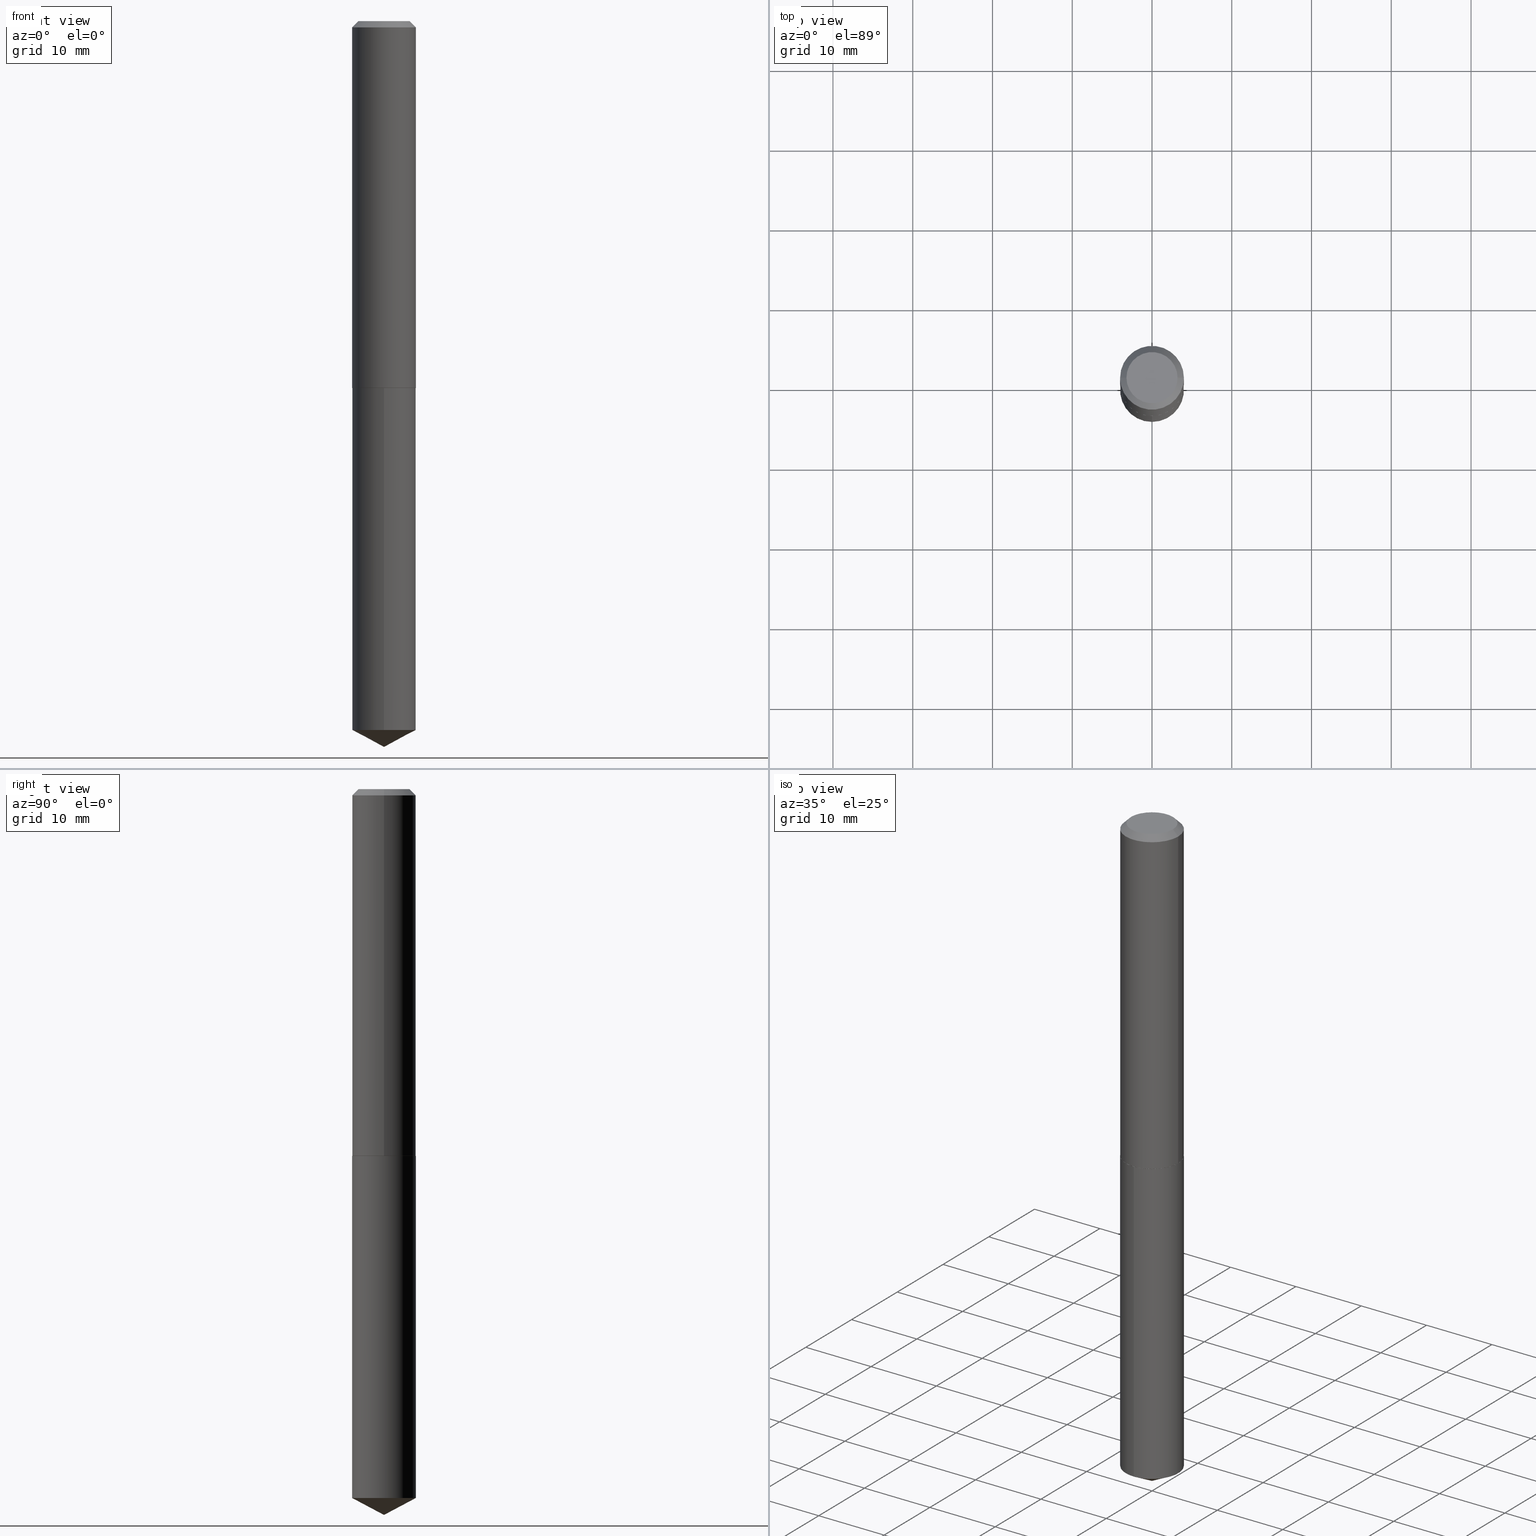
[diagram: canonical four-view strip — front | top / right | iso, engineering-drawing reading convention]
A machine part, canonical four-view strip (front | top / right | iso — engineering-drawing reading convention). The complete STEP part file that produces these views, byte-faithful:
ISO-10303-21;
HEADER;
FILE_DESCRIPTION (( 'STEP AP203' ),
    '1' );
FILE_NAME ('65210.STEP',
    '2024-04-23T11:19:13',
    ( '' ),
    ( '' ),
    'SwSTEP 2.0',
    'SolidWorks 2023',
    '' );
FILE_SCHEMA (( 'CONFIG_CONTROL_DESIGN' ));
ENDSEC;

DATA;
#1 = DIRECTION ( 'NONE',  ( 2.446502348111578865E-29, -3.490001247978926610E-15, -1.000000000000000000 ) ) ;
#2 = CC_DESIGN_DATE_AND_TIME_ASSIGNMENT ( #271, #303, ( #220 ) ) ;
#3 = DIRECTION ( 'NONE',  ( -2.446502348111579145E-29, 3.490001247978926610E-15, 1.000000000000000000 ) ) ;
#4 = AXIS2_PLACEMENT_3D ( 'NONE', #90, #171, #297 ) ;
#5 = AXIS2_PLACEMENT_3D ( 'NONE', #166, #88, #289 ) ;
#6 = PERSON_AND_ORGANIZATION_ROLE ( 'design_owner' ) ;
#7 = FACE_OUTER_BOUND ( 'NONE', #131, .T. ) ;
#8 = EDGE_CURVE ( 'NONE', #63, #55, #154, .T. ) ;
#9 = CARTESIAN_POINT ( 'NONE',  ( -0.1575000000000000011, -2.096287643151965949E-15, -0.03125000000000020123 ) ) ;
#10 = DIRECTION ( 'NONE',  ( 1.000000000000000000, -6.982962677686267499E-15, 4.876009584780190244E-29 ) ) ;
#11 = LINE ( 'NONE', #349, #48 ) ;
#12 = DIRECTION ( 'NONE',  ( -6.165590087286839185E-15, -0.8829475928589269884, 0.4694715627858908058 ) ) ;
#13 = AXIS2_PLACEMENT_3D ( 'NONE', #167, #174, #20 ) ;
#14 = AXIS2_PLACEMENT_3D ( 'NONE', #132, #243, #357 ) ;
#15 = COORDINATED_UNIVERSAL_TIME_OFFSET ( 5, 0, .BEHIND. ) ;
#16 = CARTESIAN_POINT ( 'NONE',  ( 8.558331646037396296E-29, -1.221404057733872475E-14, -3.498955764513318023 ) ) ;
#17 = CC_DESIGN_PERSON_AND_ORGANIZATION_ASSIGNMENT ( #296, #21, ( #203 ) ) ;
#18 = PERSON_AND_ORGANIZATION ( #117, #363 ) ;
#19 = ORIENTED_EDGE ( 'NONE', *, *, #347, .T. ) ;
#20 = DIRECTION ( 'NONE',  ( 1.000000000000000000, -6.982962677686264344E-15, 0.000000000000000000 ) ) ;
#21 = PERSON_AND_ORGANIZATION_ROLE ( 'design_supplier' ) ;
#22 = ORIENTED_EDGE ( 'NONE', *, *, #125, .F. ) ;
#23 = LINE ( 'NONE', #26, #24 ) ;
#24 = VECTOR ( 'NONE', #12, 39.37007874015748854 ) ;
#25 = LOCAL_TIME ( 7, 19, 13.00000000000000000, #141 ) ;
#26 = CARTESIAN_POINT ( 'NONE',  ( 8.761340267013393823E-29, -1.250898865626247406E-14, -3.582699999999999996 ) ) ;
#27 = VERTEX_POINT ( 'NONE', #315 ) ;
#28 = DIRECTION ( 'NONE',  ( -2.446502348111579145E-29, 3.490001247978926610E-15, 1.000000000000000000 ) ) ;
#29 = EDGE_LOOP ( 'NONE', ( #206, #269 ) ) ;
#30 = ORIENTED_EDGE ( 'NONE', *, *, #293, .T. ) ;
#31 = VECTOR ( 'NONE', #159, 39.37007874015748143 ) ;
#32 = CARTESIAN_POINT ( 'NONE',  ( 0.000000000000000000, 0.000000000000000000, 0.000000000000000000 ) ) ;
#33 = PERSON_AND_ORGANIZATION ( #117, #363 ) ;
#34 = VERTEX_POINT ( 'NONE', #366 ) ;
#35 = DIRECTION ( 'NONE',  ( 1.000000000000000000, -6.982962677686267499E-15, 4.876176775795936353E-29 ) ) ;
#36 = ORIENTED_EDGE ( 'NONE', *, *, #333, .T. ) ;
#37 = CARTESIAN_POINT ( 'NONE',  ( -1.179965205088274384E-46, 1.684677589683407292E-32, 4.825108388640570813E-18 ) ) ;
#38 = CIRCLE ( 'NONE', #256, 0.1262499999999999734 ) ;
#39 = SHAPE_DEFINITION_REPRESENTATION ( #382, #202 ) ;
#40 = DIRECTION ( 'NONE',  ( -0.7071067811865452413, 2.468850131082233000E-15, -0.7071067811865497932 ) ) ;
#41 = CC_DESIGN_DATE_AND_TIME_ASSIGNMENT ( #291, #201, ( #378 ) ) ;
#42 = DESIGN_CONTEXT ( 'detailed design', #181, 'design' ) ;
#43 = ADVANCED_FACE ( 'NONE', ( #217 ), #283, .F. ) ;
#44 = CARTESIAN_POINT ( 'NONE',  ( -0.1575000000000000844, 1.119104808822158392E-15, -7.747322767151481189E-30 ) ) ;
#45 = FACE_OUTER_BOUND ( 'NONE', #204, .T. ) ;
#46 = CARTESIAN_POINT ( 'NONE',  ( 1.119104808822201977E-15, 0.1574999999999936728, -1.811100000000000820 ) ) ;
#47 = ADVANCED_FACE ( 'NONE', ( #364 ), #338, .T. ) ;
#48 = VECTOR ( 'NONE', #52, 39.37007874015748143 ) ;
#49 = CARTESIAN_POINT ( 'NONE',  ( 8.765116790370389048E-29, -1.250362747113410161E-14, -3.582699999999999996 ) ) ;
#50 = APPROVAL_ROLE ( '' ) ;
#51 = EDGE_CURVE ( 'NONE', #92, #65, #82, .T. ) ;
#52 = DIRECTION ( 'NONE',  ( -2.445468806185136877E-29, 3.491481338843145188E-15, 1.000000000000000000 ) ) ;
#53 = ORIENTED_EDGE ( 'NONE', *, *, #59, .F. ) ;
#54 = AXIS2_PLACEMENT_3D ( 'NONE', #194, #337, #10 ) ;
#55 = VERTEX_POINT ( 'NONE', #111 ) ;
#56 = MANIFOLD_SOLID_BREP ( 'Body-Move/Copy2[2]', #67 ) ;
#57 = PERSON_AND_ORGANIZATION ( #117, #363 ) ;
#58 = PLANE ( 'NONE',  #69 ) ;
#59 = EDGE_CURVE ( 'NONE', #260, #65, #266, .T. ) ;
#60 = CONICAL_SURFACE ( 'NONE', #275, 0.1575000000000000011, 0.7853981633974450594 ) ;
#61 = CIRCLE ( 'NONE', #292, 0.1575000000000000011 ) ;
#62 = EDGE_LOOP ( 'NONE', ( #173, #98, #359 ) ) ;
#63 = VERTEX_POINT ( 'NONE', #85 ) ;
#64 = LINE ( 'NONE', #96, #237 ) ;
#65 = VERTEX_POINT ( 'NONE', #9 ) ;
#66 = EDGE_CURVE ( 'NONE', #321, #133, #153, .T. ) ;
#67 = CLOSED_SHELL ( 'NONE', ( #178, #114, #94, #190, #264, #164, #158, #267 ) ) ;
#68 = ORIENTED_EDGE ( 'NONE', *, *, #59, .T. ) ;
#69 = AXIS2_PLACEMENT_3D ( 'NONE', #140, #200, #345 ) ;
#70 = CARTESIAN_POINT ( 'NONE',  ( -1.099816621735542318E-15, -0.1575000000000063016, -1.811099999999999710 ) ) ;
#71 = DIRECTION ( 'NONE',  ( 0.7071067811865452413, -7.319954787623248157E-15, -0.7071067811865497932 ) ) ;
#72 = FACE_OUTER_BOUND ( 'NONE', #241, .T. ) ;
#73 = CARTESIAN_POINT ( 'NONE',  ( 4.427765820478809342E-29, -6.321676112109400370E-15, -1.810600000000000431 ) ) ;
#74 = DIRECTION ( 'NONE',  ( -2.445468806185136597E-29, 3.491481338843145583E-15, 1.000000000000000000 ) ) ;
#75 = APPROVAL_STATUS ( 'not_yet_approved' ) ;
#76 = CARTESIAN_POINT ( 'NONE',  ( 4.428988554881901583E-29, -6.323421852778821873E-15, -1.811100000000000154 ) ) ;
#77 = CARTESIAN_POINT ( 'NONE',  ( 0.1575000000000000011, -1.208925413574435989E-15, -0.03125000000000020123 ) ) ;
#78 = AXIS2_PLACEMENT_3D ( 'NONE', #80, #310, #156 ) ;
#79 = DIRECTION ( 'NONE',  ( 1.000000000000000000, -6.982962677686265922E-15, 0.000000000000000000 ) ) ;
#80 = CARTESIAN_POINT ( 'NONE',  ( 4.427765820478809342E-29, -6.321676112109400370E-15, -1.810600000000000431 ) ) ;
#81 =( CONVERSION_BASED_UNIT ( 'INCH', #216 ) LENGTH_UNIT ( ) NAMED_UNIT ( #257 ) );
#82 = LINE ( 'NONE', #44, #285 ) ;
#83 = DIRECTION ( 'NONE',  ( -2.446502348111579145E-29, 3.490001247978926610E-15, 1.000000000000000000 ) ) ;
#84 = DIRECTION ( 'NONE',  ( 1.000000000000000000, 0.000000000000000000, 0.000000000000000000 ) ) ;
#85 = CARTESIAN_POINT ( 'NONE',  ( 0.1570000000000001394, -7.419746993175565558E-15, -1.811100000000000154 ) ) ;
#86 = DIRECTION ( 'NONE',  ( -6.982962677686264344E-15, -1.000000000000000000, 3.469013325287953293E-15 ) ) ;
#87 = COORDINATED_UNIVERSAL_TIME_OFFSET ( 5, 0, .BEHIND. ) ;
#88 = DIRECTION ( 'NONE',  ( -2.446502348111579145E-29, 3.490001247978926610E-15, 1.000000000000000000 ) ) ;
#89 = ORIENTED_EDGE ( 'NONE', *, *, #347, .F. ) ;
#90 = CARTESIAN_POINT ( 'NONE',  ( 4.427765820478809342E-29, -6.321676112109400370E-15, -1.810600000000000431 ) ) ;
#91 = DATE_AND_TIME ( #259, #245 ) ;
#92 = VERTEX_POINT ( 'NONE', #343 ) ;
#93 = COORDINATED_UNIVERSAL_TIME_OFFSET ( 5, 0, .BEHIND. ) ;
#94 = ADVANCED_FACE ( 'NONE', ( #45 ), #162, .T. ) ;
#95 = VERTEX_POINT ( 'NONE', #235 ) ;
#96 = CARTESIAN_POINT ( 'NONE',  ( -0.1575000000000001954, -5.202571303287241189E-15, -1.810600000000000431 ) ) ;
#97 = CC_DESIGN_PERSON_AND_ORGANIZATION_ASSIGNMENT ( #57, #172, ( #203 ) ) ;
#98 = ORIENTED_EDGE ( 'NONE', *, *, #232, .T. ) ;
#99 = CARTESIAN_POINT ( 'NONE',  ( 7.642090019328601786E-31, -1.091087918388490144E-16, -0.03125000000000020123 ) ) ;
#100 = EDGE_LOOP ( 'NONE', ( #236, #304, #19, #325 ) ) ;
#101 = APPROVAL_ROLE ( '' ) ;
#102 = DIRECTION ( 'NONE',  ( -6.982962677686264344E-15, -1.000000000000000000, 3.469013325287953293E-15 ) ) ;
#103 = ORIENTED_EDGE ( 'NONE', *, *, #293, .F. ) ;
#104 = DIRECTION ( 'NONE',  ( -2.445468806185136597E-29, 3.491481338843145583E-15, 1.000000000000000000 ) ) ;
#105 = DIRECTION ( 'NONE',  ( 1.000000000000000000, -6.982962677686264344E-15, 0.000000000000000000 ) ) ;
#106 = DIRECTION ( 'NONE',  ( 0.7071067811866682540, -2.468850131083521605E-15, 0.7071067811864267805 ) ) ;
#107 = EDGE_CURVE ( 'NONE', #55, #63, #233, .T. ) ;
#108 = CIRCLE ( 'NONE', #14, 0.1575000000000001954 ) ;
#109 = LOCAL_TIME ( 7, 19, 13.00000000000000000, #135 ) ;
#110 = LINE ( 'NONE', #223, #31 ) ;
#111 = CARTESIAN_POINT ( 'NONE',  ( -0.1570000000000001394, -5.205220530461352390E-15, -1.811100000000000154 ) ) ;
#112 = CC_DESIGN_APPROVAL ( #376, ( #220 ) ) ;
#113 = CARTESIAN_POINT ( 'NONE',  ( 4.428988554881901583E-29, -6.323421852778821873E-15, -1.811100000000000154 ) ) ;
#114 = ADVANCED_FACE ( 'NONE', ( #290 ), #123, .T. ) ;
#115 = CARTESIAN_POINT ( 'NONE',  ( 4.428988554881901583E-29, -6.323421852778821873E-15, -1.811100000000000154 ) ) ;
#116 = FACE_OUTER_BOUND ( 'NONE', #354, .T. ) ;
#117 = PERSON ( 'UNSPECIFIED', 'UNSPECIFIED', 'UNSPECIFIED', ('UNSPECIFIED'), ('UNSPECIFIED'), ('UNSPECIFIED') ) ;
#118 = PERSON_AND_ORGANIZATION ( #117, #363 ) ;
#119 = EDGE_CURVE ( 'NONE', #95, #27, #23, .T. ) ;
#120 = ORIENTED_EDGE ( 'NONE', *, *, #333, .F. ) ;
#121 = APPROVAL_DATE_TIME ( #311, #376 ) ;
#122 = PRODUCT ( '65210', '65210', '', ( #246 ) ) ;
#123 = CYLINDRICAL_SURFACE ( 'NONE', #211, 0.1575000000000000844 ) ;
#124 = ORIENTED_EDGE ( 'NONE', *, *, #360, .F. ) ;
#125 = EDGE_CURVE ( 'NONE', #55, #92, #64, .T. ) ;
#126 = CIRCLE ( 'NONE', #342, 0.1575000000000000011 ) ;
#127 = ORIENTED_EDGE ( 'NONE', *, *, #232, .F. ) ;
#128 = DIRECTION ( 'NONE',  ( 2.445468806185136597E-29, -3.491481338843145583E-15, -1.000000000000000000 ) ) ;
#129 = VERTEX_POINT ( 'NONE', #300 ) ;
#130 = CARTESIAN_POINT ( 'NONE',  ( 7.642090019328601786E-31, -1.091087918388490144E-16, -0.03125000000000020123 ) ) ;
#131 = EDGE_LOOP ( 'NONE', ( #182, #207 ) ) ;
#132 = CARTESIAN_POINT ( 'NONE',  ( 4.427765820478809342E-29, -6.321676112109400370E-15, -1.810600000000000431 ) ) ;
#133 = VERTEX_POINT ( 'NONE', #70 ) ;
#134 = CARTESIAN_POINT ( 'NONE',  ( 8.558331646037396296E-29, -1.221404057733872475E-14, -3.498955764513318023 ) ) ;
#135 = COORDINATED_UNIVERSAL_TIME_OFFSET ( 5, 0, .BEHIND. ) ;
#136 = PERSON_AND_ORGANIZATION ( #117, #363 ) ;
#137 = LINE ( 'NONE', #198, #323 ) ;
#138 = CC_DESIGN_PERSON_AND_ORGANIZATION_ASSIGNMENT ( #294, #373, ( #378 ) ) ;
#139 = CIRCLE ( 'NONE', #155, 0.1575000000000000011 ) ;
#140 = CARTESIAN_POINT ( 'NONE',  ( -5.899826025441371921E-47, 8.423387948417036461E-33, 2.412554194320285406E-18 ) ) ;
#141 = COORDINATED_UNIVERSAL_TIME_OFFSET ( 5, 0, .BEHIND. ) ;
#142 = CONICAL_SURFACE ( 'NONE', #175, 74.04434902938376695, 1.082104136236487824 ) ;
#143 = DIRECTION ( 'NONE',  ( -2.445468806185136597E-29, 3.491481338843145583E-15, 1.000000000000000000 ) ) ;
#144 = AXIS2_PLACEMENT_3D ( 'NONE', #16, #28, #102 ) ;
#145 = ORIENTED_EDGE ( 'NONE', *, *, #51, .T. ) ;
#146 = CONICAL_SURFACE ( 'NONE', #244, 0.1575000000000000011, 0.7853981633974450594 ) ;
#147 = CONICAL_SURFACE ( 'NONE', #369, 74.04434902938376695, 1.082104136236487824 ) ;
#148 = ORIENTED_EDGE ( 'NONE', *, *, #125, .T. ) ;
#149 = DIRECTION ( 'NONE',  ( -2.445468806185136597E-29, 3.491481338843145583E-15, 1.000000000000000000 ) ) ;
#150 = EDGE_LOOP ( 'NONE', ( #209, #145, #53, #103 ) ) ;
#151 = CARTESIAN_POINT ( 'NONE',  ( 7.642090019328601786E-31, -1.091087918388490144E-16, -0.03125000000000020123 ) ) ;
#152 = ORIENTED_EDGE ( 'NONE', *, *, #163, .F. ) ;
#153 = CIRCLE ( 'NONE', #329, 0.1575000000000000011 ) ;
#154 = CIRCLE ( 'NONE', #302, 0.1570000000000001394 ) ;
#155 = AXIS2_PLACEMENT_3D ( 'NONE', #134, #83, #196 ) ;
#156 = DIRECTION ( 'NONE',  ( 1.000000000000000000, -6.982962677686265922E-15, 0.000000000000000000 ) ) ;
#157 = FACE_OUTER_BOUND ( 'NONE', #298, .T. ) ;
#158 = ADVANCED_FACE ( 'NONE', ( #332 ), #146, .T. ) ;
#159 = DIRECTION ( 'NONE',  ( -2.446502348111579425E-29, 3.490001247978926610E-15, 1.000000000000000000 ) ) ;
#160 = UNCERTAINTY_MEASURE_WITH_UNIT (LENGTH_MEASURE( 1.000000000000000082E-05 ), #81, 'distance_accuracy_value', 'NONE');
#161 = DIRECTION ( 'NONE',  ( -2.445468806185136597E-29, 3.491481338843145583E-15, 1.000000000000000000 ) ) ;
#162 = CONICAL_SURFACE ( 'NONE', #4, 0.1575000000000001954, 0.7853981633976190313 ) ;
#163 = EDGE_CURVE ( 'NONE', #65, #260, #126, .T. ) ;
#164 = ADVANCED_FACE ( 'NONE', ( #72 ), #326, .T. ) ;
#165 = DATE_AND_TIME ( #230, #169 ) ;
#166 = CARTESIAN_POINT ( 'NONE',  ( 4.428988554881901583E-29, -6.323421852778821873E-15, -1.811100000000000154 ) ) ;
#167 = CARTESIAN_POINT ( 'NONE',  ( 4.428988554881901583E-29, -6.323421852778821873E-15, -1.811100000000000154 ) ) ;
#168 = DIRECTION ( 'NONE',  ( -6.982962677686264344E-15, -1.000000000000000000, 3.469013325287953293E-15 ) ) ;
#169 = LOCAL_TIME ( 7, 19, 13.00000000000000000, #87 ) ;
#170 = APPROVAL_DATE_TIME ( #165, #316 ) ;
#171 = DIRECTION ( 'NONE',  ( -2.445468806185136597E-29, 3.491481338843145583E-15, 1.000000000000000000 ) ) ;
#172 = PERSON_AND_ORGANIZATION_ROLE ( 'creator' ) ;
#173 = ORIENTED_EDGE ( 'NONE', *, *, #119, .F. ) ;
#174 = DIRECTION ( 'NONE',  ( -2.445468806185136597E-29, 3.491481338843145583E-15, 1.000000000000000000 ) ) ;
#175 = AXIS2_PLACEMENT_3D ( 'NONE', #388, #3, #214 ) ;
#176 = ORIENTED_EDGE ( 'NONE', *, *, #240, .T. ) ;
#177 = ORIENTED_EDGE ( 'NONE', *, *, #227, .F. ) ;
#178 = ADVANCED_FACE ( 'NONE', ( #270 ), #60, .T. ) ;
#179 = ORIENTED_EDGE ( 'NONE', *, *, #320, .F. ) ;
#180 = MANIFOLD_SOLID_BREP ( 'Body-Move/Copy2[1]', #189 ) ;
#181 = APPLICATION_CONTEXT ( 'configuration controlled 3d designs of mechanical parts and assemblies' ) ;
#182 = ORIENTED_EDGE ( 'NONE', *, *, #8, .F. ) ;
#183 = EDGE_CURVE ( 'NONE', #92, #272, #108, .T. ) ;
#184 = CARTESIAN_POINT ( 'NONE',  ( 1.119104808822243392E-15, 0.1574999999999936728, -1.811100000000000820 ) ) ;
#185 = ORIENTED_EDGE ( 'NONE', *, *, #360, .T. ) ;
#186 = CARTESIAN_POINT ( 'NONE',  ( -0.1262499999999999734, 9.361534339773144209E-16, 4.825108388634215244E-18 ) ) ;
#187 = DIRECTION ( 'NONE',  ( 6.273719981627770021E-15, 0.8829475928589302081, 0.4694715627858845886 ) ) ;
#188 = CALENDAR_DATE ( 2024, 23, 4 ) ;
#189 = CLOSED_SHELL ( 'NONE', ( #279, #199, #367, #47, #43 ) ) ;
#190 = ADVANCED_FACE ( 'NONE', ( #7 ), #390, .F. ) ;
#191 = AXIS2_PLACEMENT_3D ( 'NONE', #252, #339, #84 ) ;
#192 = APPLICATION_PROTOCOL_DEFINITION ( 'international standard', 'config_control_design', 1994, #228 ) ;
#193 = DIRECTION ( 'NONE',  ( -2.446502348111579145E-29, 3.490001247978926610E-15, 1.000000000000000000 ) ) ;
#194 = CARTESIAN_POINT ( 'NONE',  ( -1.179965205088274384E-46, 1.684677589683407292E-32, 4.825108388640570813E-18 ) ) ;
#195 = EDGE_CURVE ( 'NONE', #27, #129, #139, .T. ) ;
#196 = DIRECTION ( 'NONE',  ( -6.982962677686264344E-15, -1.000000000000000000, 3.469013325287953293E-15 ) ) ;
#197 = APPROVAL_ROLE ( '' ) ;
#198 = CARTESIAN_POINT ( 'NONE',  ( 0.1575000000000001954, -7.421492733844987850E-15, -1.810600000000000431 ) ) ;
#199 = ADVANCED_FACE ( 'NONE', ( #253 ), #147, .T. ) ;
#200 = DIRECTION ( 'NONE',  ( 2.438088387897960049E-29, -3.491481338843145188E-15, -1.000000000000000000 ) ) ;
#201 = DATE_TIME_ROLE ( 'creation_date' ) ;
#202 = ADVANCED_BREP_SHAPE_REPRESENTATION ( '65210', ( #180, #56, #191 ), #351 ) ;
#203 = PRODUCT_DEFINITION_FORMATION_WITH_SPECIFIED_SOURCE ( 'ANY', '', #122, .NOT_KNOWN. ) ;
#204 = EDGE_LOOP ( 'NONE', ( #383, #148, #327, #177 ) ) ;
#205 = CIRCLE ( 'NONE', #144, 0.1575000000000000011 ) ;
#206 = ORIENTED_EDGE ( 'NONE', *, *, #308, .T. ) ;
#207 = ORIENTED_EDGE ( 'NONE', *, *, #107, .F. ) ;
#208 = DIRECTION ( 'NONE',  ( 1.000000000000000000, -6.982962677686265922E-15, 0.000000000000000000 ) ) ;
#209 = ORIENTED_EDGE ( 'NONE', *, *, #356, .T. ) ;
#210 = CALENDAR_DATE ( 2024, 23, 4 ) ;
#211 = AXIS2_PLACEMENT_3D ( 'NONE', #375, #143, #261 ) ;
#212 = LINE ( 'NONE', #331, #250 ) ;
#213 = ORIENTED_EDGE ( 'NONE', *, *, #183, .T. ) ;
#214 = DIRECTION ( 'NONE',  ( -6.982962677686267499E-15, -1.000000000000000000, 3.541896320645549825E-15 ) ) ;
#215 = FACE_OUTER_BOUND ( 'NONE', #274, .T. ) ;
#216 = LENGTH_MEASURE_WITH_UNIT ( LENGTH_MEASURE( 0.02539999999999999897 ), #224 );
#217 = FACE_OUTER_BOUND ( 'NONE', #29, .T. ) ;
#218 = LINE ( 'NONE', #49, #374 ) ;
#219 = APPROVAL ( #317, 'UNSPECIFIED' ) ;
#220 = SECURITY_CLASSIFICATION ( '', '', #262 ) ;
#221 = DIRECTION ( 'NONE',  ( -2.445468806185136877E-29, 3.491481338843145188E-15, 1.000000000000000000 ) ) ;
#222 = DIRECTION ( 'NONE',  ( -2.446502348111579425E-29, 3.490001247978926610E-15, 1.000000000000000000 ) ) ;
#223 = CARTESIAN_POINT ( 'NONE',  ( -1.099816621735542318E-15, -0.1575000000000063016, -1.811099999999999710 ) ) ;
#224 =( LENGTH_UNIT ( ) NAMED_UNIT ( * ) SI_UNIT ( $, .METRE. ) );
#225 = CARTESIAN_POINT ( 'NONE',  ( 7.642090019328601786E-31, -1.091087918388490144E-16, -0.03125000000000020123 ) ) ;
#226 = CARTESIAN_POINT ( 'NONE',  ( -8.755577796833666500E-28, 1.248953158724799285E-13, 35.78737874015747877 ) ) ;
#227 = EDGE_CURVE ( 'NONE', #63, #272, #137, .T. ) ;
#228 = APPLICATION_CONTEXT ( 'configuration controlled 3d designs of mechanical parts and assemblies' ) ;
#229 = AXIS2_PLACEMENT_3D ( 'NONE', #281, #284, #248 ) ;
#230 = CALENDAR_DATE ( 2024, 23, 4 ) ;
#231 = DIRECTION ( 'NONE',  ( -2.446502348111579145E-29, 3.490001247978926610E-15, 1.000000000000000000 ) ) ;
#232 = EDGE_CURVE ( 'NONE', #95, #129, #218, .T. ) ;
#233 = CIRCLE ( 'NONE', #13, 0.1570000000000001394 ) ;
#234 = CIRCLE ( 'NONE', #312, 0.1575000000000001954 ) ;
#235 = CARTESIAN_POINT ( 'NONE',  ( 8.765083962579353023E-29, -1.250362747113410003E-14, -3.582699999999999996 ) ) ;
#236 = ORIENTED_EDGE ( 'NONE', *, *, #240, .F. ) ;
#237 = VECTOR ( 'NONE', #328, 39.37007874015748143 ) ;
#238 = VECTOR ( 'NONE', #222, 39.37007874015748143 ) ;
#239 = CARTESIAN_POINT ( 'NONE',  ( 4.428988554881901583E-29, -6.323421852778821873E-15, -1.811100000000000154 ) ) ;
#240 = EDGE_CURVE ( 'NONE', #129, #321, #288, .T. ) ;
#241 = EDGE_LOOP ( 'NONE', ( #301, #213, #30, #152 ) ) ;
#242 = ORIENTED_EDGE ( 'NONE', *, *, #314, .F. ) ;
#243 = DIRECTION ( 'NONE',  ( -2.445468806185136597E-29, 3.491481338843145583E-15, 1.000000000000000000 ) ) ;
#244 = AXIS2_PLACEMENT_3D ( 'NONE', #130, #128, #353 ) ;
#245 = LOCAL_TIME ( 7, 19, 13.00000000000000000, #15 ) ;
#246 = MECHANICAL_CONTEXT ( 'NONE', #228, 'mechanical' ) ;
#247 = EDGE_LOOP ( 'NONE', ( #179, #370, #185, #295 ) ) ;
#248 = DIRECTION ( 'NONE',  ( 1.000000000000000000, -6.982962677686265922E-15, 4.876176775795935793E-29 ) ) ;
#249 = PRODUCT_RELATED_PRODUCT_CATEGORY ( 'detail', '', ( #122 ) ) ;
#250 = VECTOR ( 'NONE', #71, 39.37007874015748143 ) ;
#251 = DIRECTION ( 'NONE',  ( 6.982962677686265922E-15, 1.000000000000000000, -3.490001247978926610E-15 ) ) ;
#252 = CARTESIAN_POINT ( 'NONE',  ( 0.000000000000000000, 0.000000000000000000, 0.000000000000000000 ) ) ;
#253 = FACE_OUTER_BOUND ( 'NONE', #62, .T. ) ;
#254 = CYLINDRICAL_SURFACE ( 'NONE', #5, 0.1575000000000000011 ) ;
#255 = CALENDAR_DATE ( 2024, 23, 4 ) ;
#256 = AXIS2_PLACEMENT_3D ( 'NONE', #37, #161, #334 ) ;
#257 = DIMENSIONAL_EXPONENTS ( 1.000000000000000000, 0.000000000000000000, 0.000000000000000000, 0.000000000000000000, 0.000000000000000000, 0.000000000000000000, 0.000000000000000000 ) ;
#258 = EDGE_CURVE ( 'NONE', #380, #34, #368, .T. ) ;
#259 = CALENDAR_DATE ( 2024, 23, 4 ) ;
#260 = VERTEX_POINT ( 'NONE', #77 ) ;
#261 = DIRECTION ( 'NONE',  ( 1.000000000000000000, -6.982962677686267499E-15, 4.876176775795936353E-29 ) ) ;
#262 = SECURITY_CLASSIFICATION_LEVEL ( 'unclassified' ) ;
#263 = CC_DESIGN_SECURITY_CLASSIFICATION ( #220, ( #203 ) ) ;
#264 = ADVANCED_FACE ( 'NONE', ( #215 ), #268, .T. ) ;
#265 = ORIENTED_EDGE ( 'NONE', *, *, #320, .T. ) ;
#266 = CIRCLE ( 'NONE', #379, 0.1575000000000000011 ) ;
#267 = ADVANCED_FACE ( 'NONE', ( #335 ), #58, .F. ) ;
#268 = CONICAL_SURFACE ( 'NONE', #78, 0.1575000000000001954, 0.7853981633976190313 ) ;
#269 = ORIENTED_EDGE ( 'NONE', *, *, #66, .T. ) ;
#270 = FACE_OUTER_BOUND ( 'NONE', #372, .T. ) ;
#271 = DATE_AND_TIME ( #188, #109 ) ;
#272 = VERTEX_POINT ( 'NONE', #319 ) ;
#273 = DIRECTION ( 'NONE',  ( 2.445468806185136597E-29, -3.491481338843145583E-15, -1.000000000000000000 ) ) ;
#274 = EDGE_LOOP ( 'NONE', ( #22, #355, #385, #307 ) ) ;
#275 = AXIS2_PLACEMENT_3D ( 'NONE', #151, #273, #384 ) ;
#276 = APPROVAL_PERSON_ORGANIZATION ( #18, #219, #50 ) ;
#277 =( NAMED_UNIT ( * ) PLANE_ANGLE_UNIT ( ) SI_UNIT ( $, .RADIAN. ) );
#278 = DIRECTION ( 'NONE',  ( -6.982962677686264344E-15, -1.000000000000000000, 3.469013325287953293E-15 ) ) ;
#279 = ADVANCED_FACE ( 'NONE', ( #116 ), #254, .T. ) ;
#280 = CARTESIAN_POINT ( 'NONE',  ( -0.1575000000000000011, 9.907078298967379852E-16, -0.03125000000000020123 ) ) ;
#281 = CARTESIAN_POINT ( 'NONE',  ( 4.428988554881901583E-29, -6.323421852778821873E-15, -1.811100000000000154 ) ) ;
#282 = DIRECTION ( 'NONE',  ( 1.000000000000000000, -6.982962677686265922E-15, 0.000000000000000000 ) ) ;
#283 = PLANE ( 'NONE',  #322 ) ;
#284 = DIRECTION ( 'NONE',  ( -2.438088387897960049E-29, 3.491481338843145188E-15, 1.000000000000000000 ) ) ;
#285 = VECTOR ( 'NONE', #221, 39.37007874015748143 ) ;
#286 = VECTOR ( 'NONE', #40, 39.37007874015748143 ) ;
#287 = PERSON_AND_ORGANIZATION ( #117, #363 ) ;
#288 = LINE ( 'NONE', #46, #238 ) ;
#289 = DIRECTION ( 'NONE',  ( -6.982962677686264344E-15, -1.000000000000000000, 3.469013325287953293E-15 ) ) ;
#290 = FACE_OUTER_BOUND ( 'NONE', #150, .T. ) ;
#291 = DATE_AND_TIME ( #255, #25 ) ;
#292 = AXIS2_PLACEMENT_3D ( 'NONE', #113, #231, #168 ) ;
#293 = EDGE_CURVE ( 'NONE', #272, #260, #11, .T. ) ;
#294 = PERSON_AND_ORGANIZATION ( #117, #363 ) ;
#295 = ORIENTED_EDGE ( 'NONE', *, *, #163, .T. ) ;
#296 = PERSON_AND_ORGANIZATION ( #117, #363 ) ;
#297 = DIRECTION ( 'NONE',  ( 1.000000000000000000, -6.982962677686265922E-15, 0.000000000000000000 ) ) ;
#298 = EDGE_LOOP ( 'NONE', ( #127, #377, #242 ) ) ;
#299 = ORIENTED_EDGE ( 'NONE', *, *, #308, .F. ) ;
#300 = CARTESIAN_POINT ( 'NONE',  ( 1.119104808822243392E-15, 0.1574999999999877887, -3.498955764513318467 ) ) ;
#301 = ORIENTED_EDGE ( 'NONE', *, *, #51, .F. ) ;
#302 = AXIS2_PLACEMENT_3D ( 'NONE', #239, #74, #105 ) ;
#303 = DATE_TIME_ROLE ( 'classification_date' ) ;
#304 = ORIENTED_EDGE ( 'NONE', *, *, #314, .T. ) ;
#305 = DIRECTION ( 'NONE',  ( -2.445468806185136597E-29, 3.491481338843145583E-15, 1.000000000000000000 ) ) ;
#306 = APPLICATION_PROTOCOL_DEFINITION ( 'international standard', 'config_control_design', 1994, #181 ) ;
#307 = ORIENTED_EDGE ( 'NONE', *, *, #183, .F. ) ;
#308 = EDGE_CURVE ( 'NONE', #133, #321, #61, .T. ) ;
#309 = CARTESIAN_POINT ( 'NONE',  ( 4.428988554881901583E-29, -6.323421852778821873E-15, -1.811100000000000154 ) ) ;
#310 = DIRECTION ( 'NONE',  ( -2.445468806185136597E-29, 3.491481338843145583E-15, 1.000000000000000000 ) ) ;
#311 = DATE_AND_TIME ( #210, #348 ) ;
#312 = AXIS2_PLACEMENT_3D ( 'NONE', #73, #104, #282 ) ;
#313 = LINE ( 'NONE', #280, #286 ) ;
#314 = EDGE_CURVE ( 'NONE', #129, #27, #205, .T. ) ;
#315 = CARTESIAN_POINT ( 'NONE',  ( -1.099816621735501297E-15, -0.1575000000000122413, -3.498955764513317135 ) ) ;
#316 = APPROVAL ( #346, 'UNSPECIFIED' ) ;
#317 = APPROVAL_STATUS ( 'not_yet_approved' ) ;
#318 = APPROVAL_DATE_TIME ( #91, #219 ) ;
#319 = CARTESIAN_POINT ( 'NONE',  ( 0.1575000000000001954, -7.421492733844987850E-15, -1.810600000000000431 ) ) ;
#320 = EDGE_CURVE ( 'NONE', #34, #260, #212, .T. ) ;
#321 = VERTEX_POINT ( 'NONE', #184 ) ;
#322 = AXIS2_PLACEMENT_3D ( 'NONE', #76, #1, #251 ) ;
#323 = VECTOR ( 'NONE', #106, 39.37007874015748143 ) ;
#324 = ORIENTED_EDGE ( 'NONE', *, *, #258, .T. ) ;
#325 = ORIENTED_EDGE ( 'NONE', *, *, #66, .F. ) ;
#326 = CYLINDRICAL_SURFACE ( 'NONE', #386, 0.1575000000000000844 ) ;
#327 = ORIENTED_EDGE ( 'NONE', *, *, #356, .F. ) ;
#328 = DIRECTION ( 'NONE',  ( -0.7071067811866682540, 7.493145998870789611E-15, 0.7071067811864267805 ) ) ;
#329 = AXIS2_PLACEMENT_3D ( 'NONE', #115, #341, #86 ) ;
#330 = APPROVAL_PERSON_ORGANIZATION ( #136, #316, #197 ) ;
#331 = CARTESIAN_POINT ( 'NONE',  ( 0.1575000000000000011, -1.189637226487865274E-15, -0.03125000000000020123 ) ) ;
#332 = FACE_OUTER_BOUND ( 'NONE', #247, .T. ) ;
#333 = EDGE_CURVE ( 'NONE', #34, #380, #38, .T. ) ;
#334 = DIRECTION ( 'NONE',  ( 1.000000000000000000, -6.982962677686267499E-15, 4.876009584780190244E-29 ) ) ;
#335 = FACE_OUTER_BOUND ( 'NONE', #350, .T. ) ;
#336 = PERSON_AND_ORGANIZATION_ROLE ( 'classification_officer' ) ;
#337 = DIRECTION ( 'NONE',  ( -2.445468806185136597E-29, 3.491481338843145583E-15, 1.000000000000000000 ) ) ;
#338 = CYLINDRICAL_SURFACE ( 'NONE', #362, 0.1575000000000000011 ) ;
#339 = DIRECTION ( 'NONE',  ( 0.000000000000000000, 0.000000000000000000, 1.000000000000000000 ) ) ;
#340 = DIRECTION ( 'NONE',  ( -6.982962677686267499E-15, -1.000000000000000000, 3.541896320645549825E-15 ) ) ;
#341 = DIRECTION ( 'NONE',  ( -2.446502348111579145E-29, 3.490001247978926610E-15, 1.000000000000000000 ) ) ;
#342 = AXIS2_PLACEMENT_3D ( 'NONE', #99, #305, #208 ) ;
#343 = CARTESIAN_POINT ( 'NONE',  ( -0.1575000000000001954, -5.202571303287241189E-15, -1.810600000000000431 ) ) ;
#344 = CC_DESIGN_PERSON_AND_ORGANIZATION_ASSIGNMENT ( #287, #6, ( #122 ) ) ;
#345 = DIRECTION ( 'NONE',  ( -1.000000000000000000, 6.982962677686265922E-15, -4.876176775795935793E-29 ) ) ;
#346 = APPROVAL_STATUS ( 'not_yet_approved' ) ;
#347 = EDGE_CURVE ( 'NONE', #27, #133, #110, .T. ) ;
#348 = LOCAL_TIME ( 7, 19, 13.00000000000000000, #93 ) ;
#349 = CARTESIAN_POINT ( 'NONE',  ( 0.1575000000000000844, -1.099816621735587677E-15, 7.679978421878603638E-30 ) ) ;
#350 = EDGE_LOOP ( 'NONE', ( #324, #36 ) ) ;
#351 =( GEOMETRIC_REPRESENTATION_CONTEXT ( 3 ) GLOBAL_UNCERTAINTY_ASSIGNED_CONTEXT ( ( #160 ) ) GLOBAL_UNIT_ASSIGNED_CONTEXT ( ( #81, #277, #365 ) ) REPRESENTATION_CONTEXT ( 'NONE', 'WORKASPACE' ) );
#352 = ORIENTED_EDGE ( 'NONE', *, *, #195, .T. ) ;
#353 = DIRECTION ( 'NONE',  ( -1.000000000000000000, 6.982962677686265922E-15, 0.000000000000000000 ) ) ;
#354 = EDGE_LOOP ( 'NONE', ( #352, #176, #299, #89 ) ) ;
#355 = ORIENTED_EDGE ( 'NONE', *, *, #107, .T. ) ;
#356 = EDGE_CURVE ( 'NONE', #272, #92, #234, .T. ) ;
#357 = DIRECTION ( 'NONE',  ( 1.000000000000000000, -6.982962677686265922E-15, 0.000000000000000000 ) ) ;
#358 = APPROVAL_PERSON_ORGANIZATION ( #33, #376, #101 ) ;
#359 = ORIENTED_EDGE ( 'NONE', *, *, #195, .F. ) ;
#360 = EDGE_CURVE ( 'NONE', #380, #65, #313, .T. ) ;
#361 = DIRECTION ( 'NONE',  ( -2.446502348111579145E-29, 3.490001247978926610E-15, 1.000000000000000000 ) ) ;
#362 = AXIS2_PLACEMENT_3D ( 'NONE', #309, #193, #278 ) ;
#363 = ORGANIZATION ( 'UNSPECIFIED', 'UNSPECIFIED', '' ) ;
#364 = FACE_OUTER_BOUND ( 'NONE', #100, .T. ) ;
#365 =( NAMED_UNIT ( * ) SI_UNIT ( $, .STERADIAN. ) SOLID_ANGLE_UNIT ( ) );
#366 = CARTESIAN_POINT ( 'NONE',  ( 0.1262499999999999734, -1.027887549353260543E-15, 4.825108388647246856E-18 ) ) ;
#367 = ADVANCED_FACE ( 'NONE', ( #157 ), #142, .T. ) ;
#368 = CIRCLE ( 'NONE', #54, 0.1262499999999999734 ) ;
#369 = AXIS2_PLACEMENT_3D ( 'NONE', #226, #361, #340 ) ;
#370 = ORIENTED_EDGE ( 'NONE', *, *, #258, .F. ) ;
#371 = CC_DESIGN_PERSON_AND_ORGANIZATION_ASSIGNMENT ( #118, #336, ( #220 ) ) ;
#372 = EDGE_LOOP ( 'NONE', ( #120, #265, #68, #124 ) ) ;
#373 = PERSON_AND_ORGANIZATION_ROLE ( 'creator' ) ;
#374 = VECTOR ( 'NONE', #187, 39.37007874015748143 ) ;
#375 = CARTESIAN_POINT ( 'NONE',  ( 0.000000000000000000, 0.000000000000000000, 0.000000000000000000 ) ) ;
#376 = APPROVAL ( #75, 'UNSPECIFIED' ) ;
#377 = ORIENTED_EDGE ( 'NONE', *, *, #119, .T. ) ;
#378 = PRODUCT_DEFINITION ( 'UNKNOWN', '', #203, #42 ) ;
#379 = AXIS2_PLACEMENT_3D ( 'NONE', #225, #389, #79 ) ;
#380 = VERTEX_POINT ( 'NONE', #186 ) ;
#381 = CC_DESIGN_APPROVAL ( #219, ( #203 ) ) ;
#382 = PRODUCT_DEFINITION_SHAPE ( 'NONE', 'NONE',  #378 ) ;
#383 = ORIENTED_EDGE ( 'NONE', *, *, #8, .T. ) ;
#384 = DIRECTION ( 'NONE',  ( -1.000000000000000000, 6.982962677686265922E-15, 0.000000000000000000 ) ) ;
#385 = ORIENTED_EDGE ( 'NONE', *, *, #227, .T. ) ;
#386 = AXIS2_PLACEMENT_3D ( 'NONE', #32, #149, #35 ) ;
#387 = CC_DESIGN_APPROVAL ( #316, ( #378 ) ) ;
#388 = CARTESIAN_POINT ( 'NONE',  ( -8.755577796833666500E-28, 1.248953158724799285E-13, 35.78737874015747877 ) ) ;
#389 = DIRECTION ( 'NONE',  ( -2.445468806185136597E-29, 3.491481338843145583E-15, 1.000000000000000000 ) ) ;
#390 = PLANE ( 'NONE',  #229 ) ;
ENDSEC;
END-ISO-10303-21;
